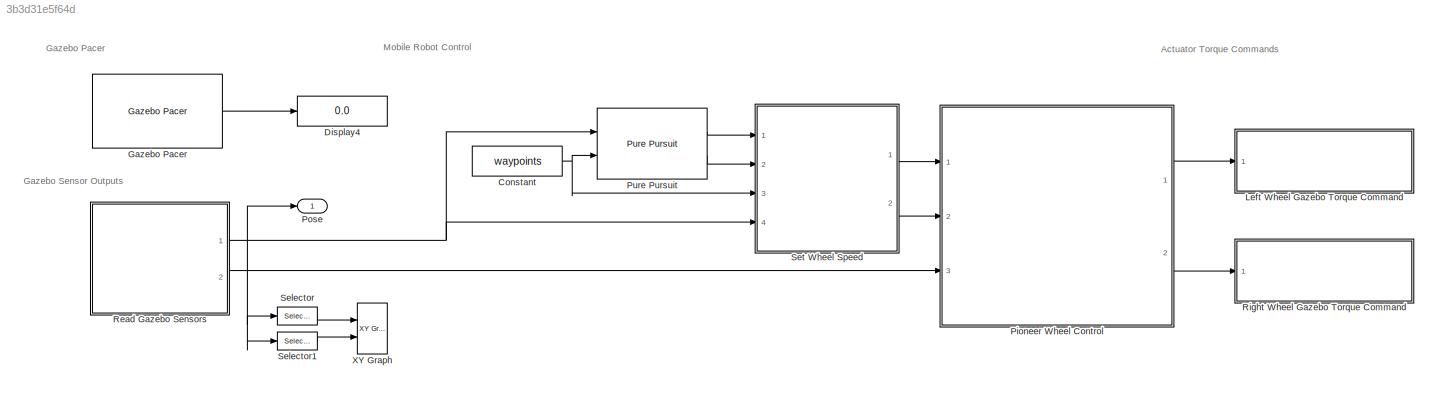
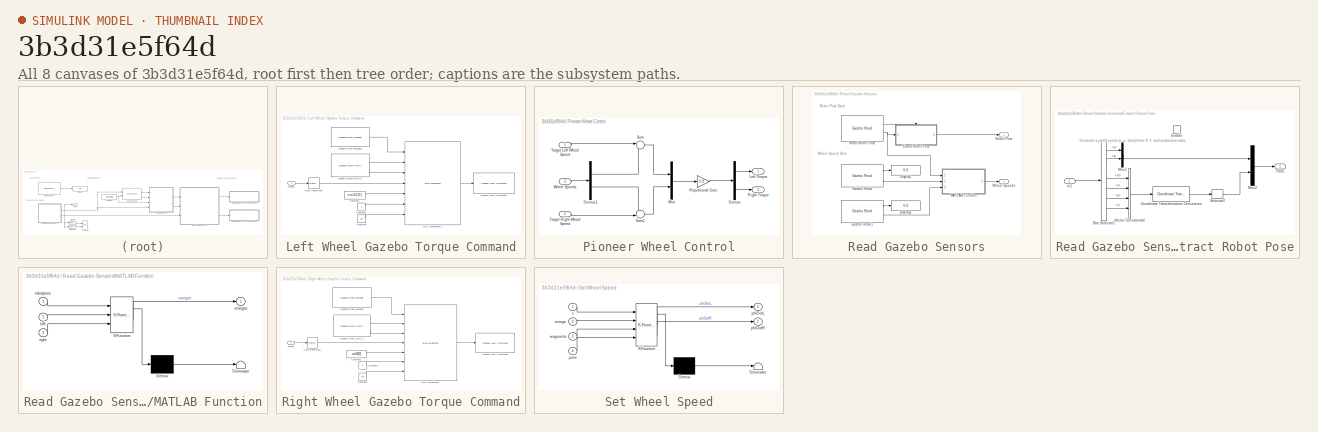
[diagram: thumbnail index - all 8 canvases of the model, root first then tree order]
MODEL slx_3b3d31e5f64d
KIND model
CONFIG AbsTol = auto
CONFIG EnableMultiTasking = off
CONFIG FixedStep = auto
CONFIG MaxStep = auto
CONFIG MinStep = auto
CONFIG RelTol = 1e-3
CONFIG SampleTimeConstraint = Unconstrained
CONFIG Solver = VariableStepAuto
CONFIG SolverName = VariableStepAuto
CONFIG StartTime = 0.0
CONFIG StopTime = 10.0
WORKSPACE source: mxarray member
WORKSPACE J: Simulink.Parameter (value not decoded)
WORKSPACE Kb: Simulink.Parameter (value not decoded)
WORKSPACE Kt: Simulink.Parameter (value not decoded)
WORKSPACE L: Simulink.Parameter (value not decoded)
WORKSPACE R: Simulink.Parameter (value not decoded)
WORKSPACE b: Simulink.Parameter (value not decoded)
BLOCK [Constant] Constant
  Value = waypoints
BLOCK [Display] Display4
  Decimation = 1
  Ports = [1]
BLOCK [Reference] Gazebo Pacer  REF=robotgazebolib/Gazebo Pacer
  Ports = [0, 1]
  SourceBlock = robotgazebolib/Gazebo Pacer
  SourceProductBaseCode = RO
  SourceType = Gazebo Pacer
BLOCK [SubSystem] Left Wheel Gazebo Torque Command
  Ports = [1]
  RequestExecContextInheritance = off
BLOCK [BusAssignment] Left Wheel Gazebo Torque Command/Bus Assignment1
  AssignedSignals = model_name,joint_name,effort,index,duration.seconds,duration.nano_seconds
  Ports = [7, 1]
BLOCK [Constant] Left Wheel Gazebo Torque Command/Constant1
  Value = uint32(0)
BLOCK [Constant] Left Wheel Gazebo Torque Command/Constant4
  Value = 0
BLOCK [Constant] Left Wheel Gazebo Torque Command/Constant5
  Value = 1e7
BLOCK [Reference] Left Wheel Gazebo Torque Command/Gazebo Apply Command1  REF=robotgazebolib/Gazebo Apply Command
  Ports = [1]
  SourceBlock = robotgazebolib/Gazebo Apply Command
  SourceProductBaseCode = RO
  SourceType = Gazebo Apply Command
BLOCK [Reference] Left Wheel Gazebo Torque Command/Gazebo Blank Message1  REF=robotgazebolib/Gazebo Blank Message
  Ports = [0, 1]
  SourceBlock = robotgazebolib/Gazebo Blank Message
  SourceProductBaseCode = RO
  SourceType = Gazebo Blank Message
BLOCK [Reference] Left Wheel Gazebo Torque Command/Gazebo Select Entity1  REF=robotgazebolib/Gazebo Select Entity
  Ports = [0, 2]
  SourceBlock = robotgazebolib/Gazebo Select Entity
  SourceProductBaseCode = RO
  SourceType = Gazebo Select Entity
BLOCK [RateTransition] Left Wheel Gazebo Torque Command/Rate Transition2
BLOCK [Inport] Left Wheel Gazebo Torque Command/Torque
BLOCK [SubSystem] Pioneer Wheel Control
  Ports = [3, 2]
  RequestExecContextInheritance = off
BLOCK [Demux] Pioneer Wheel Control/Demux
  Outputs = 2
  Ports = [1, 2]
BLOCK [Demux] Pioneer Wheel Control/Demux1
  Outputs = 2
  Ports = [1, 2]
BLOCK [Outport] Pioneer Wheel Control/Left Torque
BLOCK [Mux] Pioneer Wheel Control/Mux
  DisplayOption = bar
  Inputs = 2
  Ports = [2, 1]
BLOCK [Gain] Pioneer Wheel Control/Proportional Gain
  Gain = 0.8
BLOCK [Outport] Pioneer Wheel Control/Right Torque
  Port = 2
BLOCK [Sum] Pioneer Wheel Control/Sum
  Inputs = |+-
  Ports = [2, 1]
BLOCK [Sum] Pioneer Wheel Control/Sum1
  Inputs = -+|
  Ports = [2, 1]
BLOCK [Inport] Pioneer Wheel Control/Target Left Wheel Speed
BLOCK [Inport] Pioneer Wheel Control/Target Right Wheel Speed
  Port = 2
BLOCK [Inport] Pioneer Wheel Control/Wheel Speeds
  Port = 3
BLOCK [Outport] Pose
BLOCK [Reference] Pure Pursuit  REF=robotalgslib/Pure Pursuit
  Ports = [2, 2]
  SourceBlock = robotalgslib/Pure Pursuit
  SourceProductBaseCode = NV,RO
  SourceType = nav.slalgs.internal.PurePursuit
BLOCK [SubSystem] Read Gazebo Sensors
  Ports = [0, 2]
  RequestExecContextInheritance = off
BLOCK [Display] Read Gazebo Sensors/Display
  Decimation = 1
  Ports = [1]
BLOCK [Display] Read Gazebo Sensors/Display1
  Decimation = 1
  Ports = [1]
BLOCK [SubSystem] Read Gazebo Sensors/Extract Robot Pose
  Ports = [1, 1, 1]
  RequestExecContextInheritance = off
BLOCK [BusSelector] Read Gazebo Sensors/Extract Robot Pose/Bus Selector1
  OutputSignals = position.x,position.y,orientation.w,orientation.x,orientation.y,orientation.z
  Ports = [1, 6]
BLOCK [Reference] Read Gazebo Sensors/Extract Robot Pose/Coordinate Transformation Conversion  REF=robotcorelib/Coordinate Transformation Conversion
  Ports = [1, 1]
  SourceBlock = robotcorelib/Coordinate Transformation Conversion
  SourceProductBaseCode = NV,RO,RR
  SourceType = robotics.slcore.internal.block.CoordinateTransformationConversion
BLOCK [EnablePort] Read Gazebo Sensors/Extract Robot Pose/Enable
  Ports = []
BLOCK [Inport] Read Gazebo Sensors/Extract Robot Pose/In1
BLOCK [Mux] Read Gazebo Sensors/Extract Robot Pose/Mux1
  DisplayOption = bar
  Inputs = 2
  Ports = [2, 1]
BLOCK [Mux] Read Gazebo Sensors/Extract Robot Pose/Mux2
  DisplayOption = bar
  Inputs = 2
  Ports = [2, 1]
BLOCK [Outport] Read Gazebo Sensors/Extract Robot Pose/Pose
  VectorParamsAs1DForOutWhenUnconnected = off
BLOCK [Selector] Read Gazebo Sensors/Extract Robot Pose/Selector2
  IndexOptions = Index vector (dialog)
  Indices = 1
  InputPortWidth = 3
  OutputSizes = 1
  Ports = [1, 1]
BLOCK [Concatenate] Read Gazebo Sensors/Extract Robot Pose/Vector Concatenate
  NumInputs = 4
  Ports = [4, 1]
BLOCK [Reference] Read Gazebo Sensors/Gazebo Read  REF=robotgazebolib/Gazebo Read
  Ports = [0, 2]
  SourceBlock = robotgazebolib/Gazebo Read
  SourceProductBaseCode = RO
  SourceType = Gazebo Read
BLOCK [Reference] Read Gazebo Sensors/Gazebo Read1  REF=robotgazebolib/Gazebo Read
  Ports = [0, 2]
  SourceBlock = robotgazebolib/Gazebo Read
  SourceProductBaseCode = RO
  SourceType = Gazebo Read
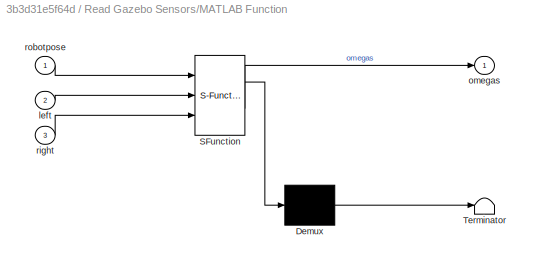
BLOCK [SubSystem] Read Gazebo Sensors/MATLAB Function
  ErrorFcn = Stateflow.Translate.translate
  PermitHierarchicalResolution = ExplicitOnly
  Ports = [3, 1]
  RequestExecContextInheritance = off
  SFBlockType = MATLAB Function
  TreatAsAtomicUnit = on
BLOCK [Demux] Read Gazebo Sensors/MATLAB Function/ Demux 
  Outputs = 1
  Ports = [1, 1]
BLOCK [S-Function] Read Gazebo Sensors/MATLAB Function/ SFunction 
  EnableBusSupport = on
  FunctionName = sf_sfun
  PortCounts = [3 2]
  Ports = [3, 2]
  SFcnIsStateOwnerBlock = off
  SFunctionDeploymentMode = off
  Tag = Stateflow S-Function 1
BLOCK [Terminator] Read Gazebo Sensors/MATLAB Function/ Terminator 
BLOCK [Inport] Read Gazebo Sensors/MATLAB Function/left
  Port = 2
BLOCK [Outport] Read Gazebo Sensors/MATLAB Function/omegas
BLOCK [Inport] Read Gazebo Sensors/MATLAB Function/right
  Port = 3
BLOCK [Inport] Read Gazebo Sensors/MATLAB Function/robotpose
BLOCK [Reference] Read Gazebo Sensors/Read Robot Pose  REF=robotgazebolib/Gazebo Read
  Ports = [0, 2]
  SourceBlock = robotgazebolib/Gazebo Read
  SourceProductBaseCode = RO
  SourceType = Gazebo Read
BLOCK [Outport] Read Gazebo Sensors/Robot Pose
BLOCK [Outport] Read Gazebo Sensors/Wheel Speeds
  Port = 2
BLOCK [SubSystem] Right Wheel Gazebo Torque Command
  Ports = [1]
  RequestExecContextInheritance = off
BLOCK [BusAssignment] Right Wheel Gazebo Torque Command/Bus Assignment1
  AssignedSignals = model_name,joint_name,effort,index,duration.seconds,duration.nano_seconds
  Ports = [7, 1]
BLOCK [Constant] Right Wheel Gazebo Torque Command/Constant1
  Value = uint32(0)
BLOCK [Constant] Right Wheel Gazebo Torque Command/Constant4
  Value = 0
BLOCK [Constant] Right Wheel Gazebo Torque Command/Constant5
  Value = 1e7
BLOCK [Reference] Right Wheel Gazebo Torque Command/Gazebo Apply Command  REF=robotgazebolib/Gazebo Apply Command
  Ports = [1]
  SourceBlock = robotgazebolib/Gazebo Apply Command
  SourceProductBaseCode = RO
  SourceType = Gazebo Apply Command
BLOCK [Reference] Right Wheel Gazebo Torque Command/Gazebo Blank Message  REF=robotgazebolib/Gazebo Blank Message
  Ports = [0, 1]
  SourceBlock = robotgazebolib/Gazebo Blank Message
  SourceProductBaseCode = RO
  SourceType = Gazebo Blank Message
BLOCK [Reference] Right Wheel Gazebo Torque Command/Gazebo Select Entity1  REF=robotgazebolib/Gazebo Select Entity
  Ports = [0, 2]
  SourceBlock = robotgazebolib/Gazebo Select Entity
  SourceProductBaseCode = RO
  SourceType = Gazebo Select Entity
BLOCK [RateTransition] Right Wheel Gazebo Torque Command/Rate Transition2
BLOCK [Inport] Right Wheel Gazebo Torque Command/Torque
BLOCK [Selector] Selector
  IndexOptions = Index vector (dialog)
  Indices = [1]
  InputPortWidth = 3
  OutputSizes = 1
  Ports = [1, 1]
BLOCK [Selector] Selector1
  IndexOptions = Index vector (dialog)
  Indices = [2]
  InputPortWidth = 3
  OutputSizes = 1
  Ports = [1, 1]
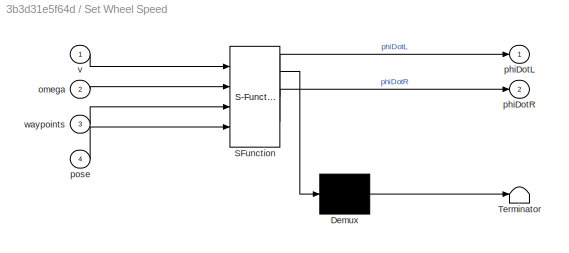
BLOCK [SubSystem] Set Wheel Speed
  ErrorFcn = Stateflow.Translate.translate
  PermitHierarchicalResolution = ExplicitOnly
  Ports = [4, 2]
  RequestExecContextInheritance = off
  SFBlockType = MATLAB Function
  TreatAsAtomicUnit = on
BLOCK [Demux] Set Wheel Speed/ Demux 
  Outputs = 1
  Ports = [1, 1]
BLOCK [S-Function] Set Wheel Speed/ SFunction 
  EnableBusSupport = on
  FunctionName = sf_sfun
  PortCounts = [4 3]
  Ports = [4, 3]
  SFcnIsStateOwnerBlock = off
  SFunctionDeploymentMode = off
  Tag = Stateflow S-Function 2
BLOCK [Terminator] Set Wheel Speed/ Terminator 
BLOCK [Inport] Set Wheel Speed/omega
  Port = 2
BLOCK [Outport] Set Wheel Speed/phiDotL
BLOCK [Outport] Set Wheel Speed/phiDotR
  Port = 2
BLOCK [Inport] Set Wheel Speed/pose
  Port = 4
BLOCK [Inport] Set Wheel Speed/v
BLOCK [Inport] Set Wheel Speed/waypoints
  Port = 3
BLOCK [Reference] XY Graph  REF=simulink/Sinks/XY Graph
  Ports = [2]
  SourceBlock = simulink/Sinks/XY Graph
  SourceProductBaseCode = SL
  SourceType = XY scope.
ANNOTATION (root): Actuator Torque Commands
ANNOTATION (root): Gazebo Pacer
ANNOTATION (root): Gazebo Sensor Outputs
ANNOTATION (root): Mobile Robot Control
ANNOTATION Read Gazebo Sensors: Robot Pose Data
ANNOTATION Read Gazebo Sensors: Wheel Speed Data
ANNOTATION Read Gazebo Sensors/Extract Robot Pose: Generate a pose vector (x, y, theta) from X, Y, and quaternion data
NET Constant:1 -> Pure Pursuit:2, Set Wheel Speed:3
LINE Gazebo Pacer:1 -> Display4:1
LINE Left Wheel Gazebo Torque Command/Bus Assignment1:1 -> Left Wheel Gazebo Torque Command/Gazebo Apply Command1:1
LINE Left Wheel Gazebo Torque Command/Constant1:1 -> Left Wheel Gazebo Torque Command/Bus Assignment1:5
LINE Left Wheel Gazebo Torque Command/Constant4:1 -> Left Wheel Gazebo Torque Command/Bus Assignment1:6
LINE Left Wheel Gazebo Torque Command/Constant5:1 -> Left Wheel Gazebo Torque Command/Bus Assignment1:7
LINE Left Wheel Gazebo Torque Command/Gazebo Blank Message1:1 -> Left Wheel Gazebo Torque Command/Bus Assignment1:1
LINE Left Wheel Gazebo Torque Command/Gazebo Select Entity1:1 -> Left Wheel Gazebo Torque Command/Bus Assignment1:2
LINE Left Wheel Gazebo Torque Command/Gazebo Select Entity1:2 -> Left Wheel Gazebo Torque Command/Bus Assignment1:3
LINE Left Wheel Gazebo Torque Command/Rate Transition2:1 -> Left Wheel Gazebo Torque Command/Bus Assignment1:4
LINE Left Wheel Gazebo Torque Command/Torque:1 -> Left Wheel Gazebo Torque Command/Rate Transition2:1
LINE Pioneer Wheel Control/Demux1:1 -> Pioneer Wheel Control/Sum:2
LINE Pioneer Wheel Control/Demux1:2 -> Pioneer Wheel Control/Sum1:1
LINE Pioneer Wheel Control/Demux:1 -> Pioneer Wheel Control/Left Torque:1
LINE Pioneer Wheel Control/Demux:2 -> Pioneer Wheel Control/Right Torque:1
LINE Pioneer Wheel Control/Mux:1 -> Pioneer Wheel Control/Proportional Gain:1
LINE Pioneer Wheel Control/Proportional Gain:1 -> Pioneer Wheel Control/Demux:1
LINE Pioneer Wheel Control/Sum1:1 -> Pioneer Wheel Control/Mux:2
LINE Pioneer Wheel Control/Sum:1 -> Pioneer Wheel Control/Mux:1
LINE Pioneer Wheel Control/Target Left Wheel Speed:1 -> Pioneer Wheel Control/Sum:1
LINE Pioneer Wheel Control/Target Right Wheel Speed:1 -> Pioneer Wheel Control/Sum1:2
LINE Pioneer Wheel Control/Wheel Speeds:1 -> Pioneer Wheel Control/Demux1:1
LINE Pioneer Wheel Control:1 -> Left Wheel Gazebo Torque Command:1
LINE Pioneer Wheel Control:2 -> Right Wheel Gazebo Torque Command:1
LINE Pure Pursuit:1 -> Set Wheel Speed:1
LINE Pure Pursuit:2 -> Set Wheel Speed:2
LINE Read Gazebo Sensors/Extract Robot Pose/Bus Selector1:1 -> Read Gazebo Sensors/Extract Robot Pose/Mux1:1
LINE Read Gazebo Sensors/Extract Robot Pose/Bus Selector1:2 -> Read Gazebo Sensors/Extract Robot Pose/Mux1:2
LINE Read Gazebo Sensors/Extract Robot Pose/Bus Selector1:3 -> Read Gazebo Sensors/Extract Robot Pose/Vector Concatenate:1
LINE Read Gazebo Sensors/Extract Robot Pose/Bus Selector1:4 -> Read Gazebo Sensors/Extract Robot Pose/Vector Concatenate:2
LINE Read Gazebo Sensors/Extract Robot Pose/Bus Selector1:5 -> Read Gazebo Sensors/Extract Robot Pose/Vector Concatenate:3
LINE Read Gazebo Sensors/Extract Robot Pose/Bus Selector1:6 -> Read Gazebo Sensors/Extract Robot Pose/Vector Concatenate:4
LINE Read Gazebo Sensors/Extract Robot Pose/Coordinate Transformation Conversion:1 -> Read Gazebo Sensors/Extract Robot Pose/Selector2:1
LINE Read Gazebo Sensors/Extract Robot Pose/In1:1 -> Read Gazebo Sensors/Extract Robot Pose/Bus Selector1:1
LINE Read Gazebo Sensors/Extract Robot Pose/Mux1:1 -> Read Gazebo Sensors/Extract Robot Pose/Mux2:1
LINE Read Gazebo Sensors/Extract Robot Pose/Mux2:1 -> Read Gazebo Sensors/Extract Robot Pose/Pose:1
LINE Read Gazebo Sensors/Extract Robot Pose/Selector2:1 -> Read Gazebo Sensors/Extract Robot Pose/Mux2:2
LINE Read Gazebo Sensors/Extract Robot Pose/Vector Concatenate:1 -> Read Gazebo Sensors/Extract Robot Pose/Coordinate Transformation Conversion:1
LINE Read Gazebo Sensors/Extract Robot Pose:1 -> Read Gazebo Sensors/Robot Pose:1
LINE Read Gazebo Sensors/Gazebo Read1:1 -> Read Gazebo Sensors/Display1:1
LINE Read Gazebo Sensors/Gazebo Read1:2 -> Read Gazebo Sensors/MATLAB Function:3
LINE Read Gazebo Sensors/Gazebo Read:1 -> Read Gazebo Sensors/Display:1
LINE Read Gazebo Sensors/Gazebo Read:2 -> Read Gazebo Sensors/MATLAB Function:2
LINE Read Gazebo Sensors/MATLAB Function:1 -> Read Gazebo Sensors/Wheel Speeds:1
LINE Read Gazebo Sensors/Read Robot Pose:1 -> Read Gazebo Sensors/Extract Robot Pose:enable
NET Read Gazebo Sensors/Read Robot Pose:2 -> Read Gazebo Sensors/Extract Robot Pose:1, Read Gazebo Sensors/MATLAB Function:1
NET Read Gazebo Sensors:1 -> Pose:1, Pure Pursuit:1, Selector1:1, Selector:1, Set Wheel Speed:4
LINE Read Gazebo Sensors:2 -> Pioneer Wheel Control:3
LINE Right Wheel Gazebo Torque Command/Bus Assignment1:1 -> Right Wheel Gazebo Torque Command/Gazebo Apply Command:1
LINE Right Wheel Gazebo Torque Command/Constant1:1 -> Right Wheel Gazebo Torque Command/Bus Assignment1:5
LINE Right Wheel Gazebo Torque Command/Constant4:1 -> Right Wheel Gazebo Torque Command/Bus Assignment1:6
LINE Right Wheel Gazebo Torque Command/Constant5:1 -> Right Wheel Gazebo Torque Command/Bus Assignment1:7
LINE Right Wheel Gazebo Torque Command/Gazebo Blank Message:1 -> Right Wheel Gazebo Torque Command/Bus Assignment1:1
LINE Right Wheel Gazebo Torque Command/Gazebo Select Entity1:1 -> Right Wheel Gazebo Torque Command/Bus Assignment1:2
LINE Right Wheel Gazebo Torque Command/Gazebo Select Entity1:2 -> Right Wheel Gazebo Torque Command/Bus Assignment1:3
LINE Right Wheel Gazebo Torque Command/Rate Transition2:1 -> Right Wheel Gazebo Torque Command/Bus Assignment1:4
LINE Right Wheel Gazebo Torque Command/Torque:1 -> Right Wheel Gazebo Torque Command/Rate Transition2:1
LINE Selector1:1 -> XY Graph:2
LINE Selector:1 -> XY Graph:1
LINE Set Wheel Speed:1 -> Pioneer Wheel Control:1
LINE Set Wheel Speed:2 -> Pioneer Wheel Control:2
note: NET lines group one-source signal fan-out (src -> all destinations, sorted); 1:1 wires keep LINE
CHART Read Gazebo Sensors/MATLAB Function states=1 transitions=1
  STATE_LABEL 'eML_blk_kernel()'
  STATE_LABEL 'SCRIPT:\nfunction omegas = computeWheelVelocities(robotpose, left, right)\n%computeWheelVelocities computes wheel velocity based on rate of change of\n%the yaw angle of the wheel relative to its original mount on the robot\n%body\n\npersistent initAngles\nif isempty(initAngles)\n    initAngles = zeros(2,1);\nend\nsampleTime = 0.01;\n\n% compute rotation between wheel original mount on the robot body and world...<+878ch>'
CHART Set Wheel Speed states=1 transitions=1
  STATE_LABEL 'eML_blk_kernel()'
  STATE_LABEL "SCRIPT:\nfunction [phiDotL, phiDotR] = wheelSpeed(v, omega, waypoints, pose)\n\n% Path constants\nstopThreshold = 0.1;\nslowThreshold = 0.3;\n\n% Robot constants\ntrackWidth = 0.381;\nwheelRadius = 0.195/2;\n\n% Slow the robot down when it's near the threshold\ndistanceToEndpoint = norm(waypoints(end, :) - pose(1:2)');\nif (distanceToEndpoint < slowThreshold)\n    v = distanceToEndpoint/slowThreshold*v;\n    \n  ...<+290ch>"
CHART  states=0 transitions=0
CHART  states=0 transitions=0
